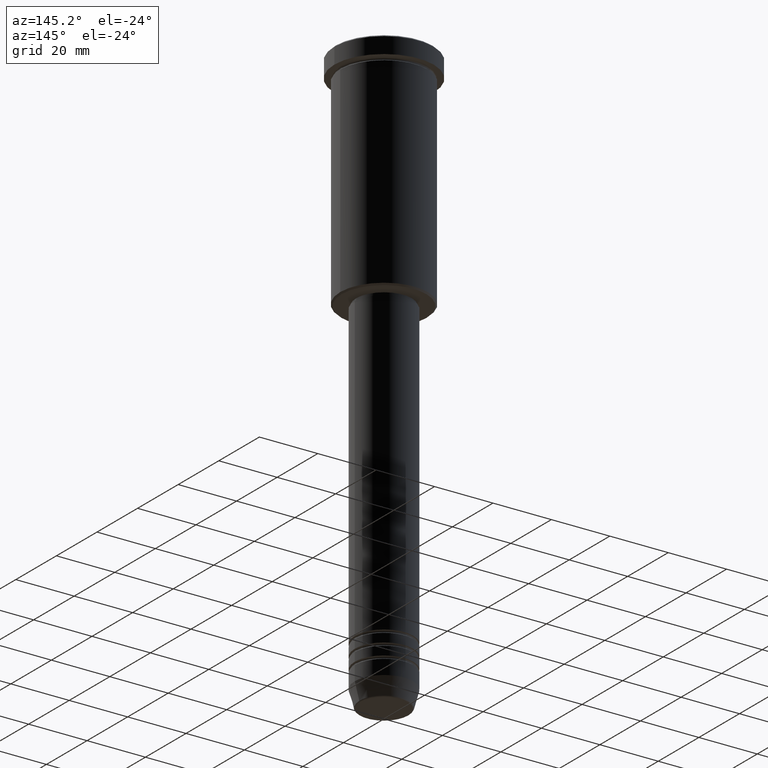
[diagram: clean part render]
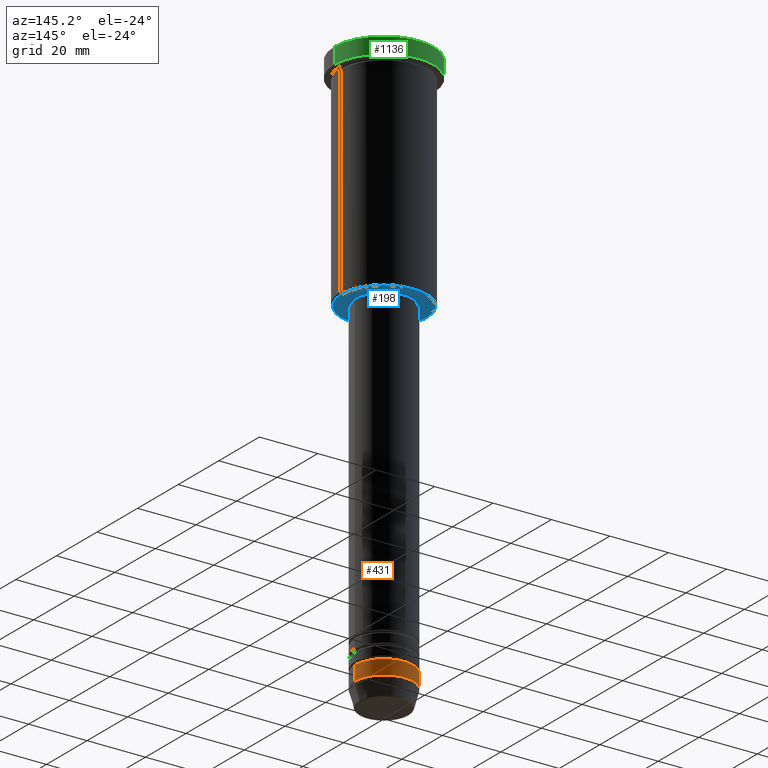
[diagram: same view with three faces highlighted in distinct colors, each labeled with its STEP entity id]
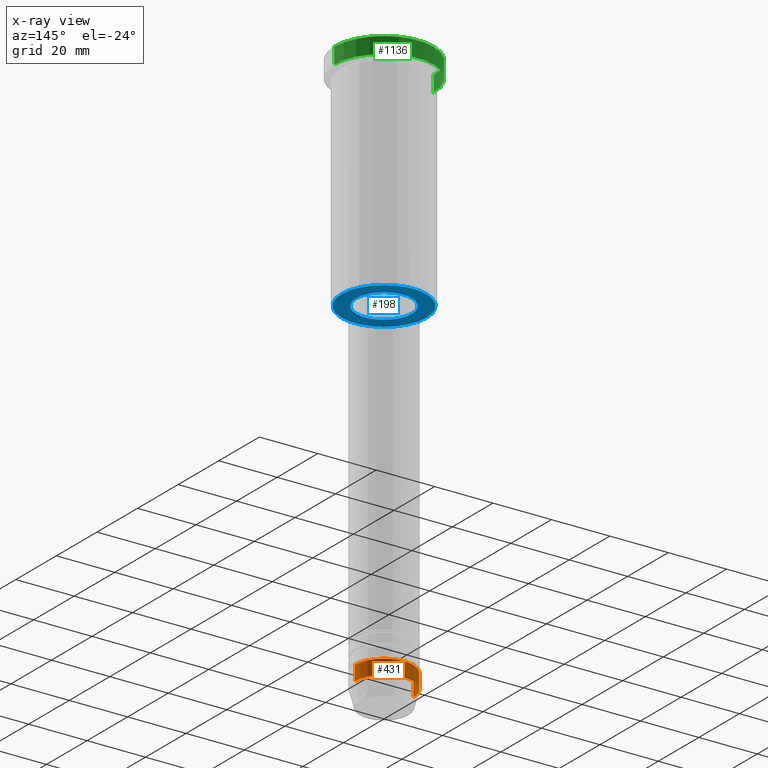
[diagram: x-ray of the same camera — body ghosted, the three highlighted faces saturated]
A machine part, auxiliary view with three faces highlighted in distinct colors.
The next image is the same camera in x-ray (body ghosted, the three faces saturated) — at least one of them is partly hidden behind the body in this view.
Their STEP definitions:

[orange] entity #431 — the highlighted cylindrical surface (edge-blend (fillet) strip) has radius 10 mm, axis along (-0, -0, 1).
#37 = DIRECTION ( 'NONE',  ( 1.000000000000000000, 0.000000000000000000, 0.000000000000000000 ) ) ;
#45 = DIRECTION ( 'NONE',  ( -0.000000000000000000, -0.000000000000000000, 1.000000000000000000 ) ) ;
#74 = CARTESIAN_POINT ( 'NONE',  ( -10.00000000000000000, 1.224646799147353256E-15, -189.0000000000000284 ) ) ;
#116 = VECTOR ( 'NONE', #1035, 1000.000000000000000 ) ;
#177 = VERTEX_POINT ( 'NONE', #1150 ) ;
#188 = VERTEX_POINT ( 'NONE', #583 ) ;
#210 = DIRECTION ( 'NONE',  ( -0.000000000000000000, -0.000000000000000000, 1.000000000000000000 ) ) ;
#231 = CARTESIAN_POINT ( 'NONE',  ( 10.00000000000000178, 0.000000000000000000, 0.000000000000000000 ) ) ;
#260 = ORIENTED_EDGE ( 'NONE', *, *, #335, .T. ) ;
#301 = DIRECTION ( 'NONE',  ( 1.000000000000000000, 0.000000000000000000, 0.000000000000000000 ) ) ;
#324 = CIRCLE ( 'NONE', #818, 10.00000000000000178 ) ;
#335 = EDGE_CURVE ( 'NONE', #177, #651, #324, .T. ) ;
#375 = EDGE_CURVE ( 'NONE', #177, #188, #409, .T. ) ;
#396 = CYLINDRICAL_SURFACE ( 'NONE', #659, 10.00000000000000178 ) ;
#405 = AXIS2_PLACEMENT_3D ( 'NONE', #575, #210, #301 ) ;
#409 = LINE ( 'NONE', #231, #861 ) ;
#412 = EDGE_LOOP ( 'NONE', ( #260, #1130, #586, #950 ) ) ;
#431 = ADVANCED_FACE ( 'NONE', ( #1040 ), #396, .T. ) ;
#466 = CARTESIAN_POINT ( 'NONE',  ( 0.000000000000000000, 0.000000000000000000, -194.0000000000000284 ) ) ;
#470 = EDGE_CURVE ( 'NONE', #188, #1179, #734, .T. ) ;
#575 = CARTESIAN_POINT ( 'NONE',  ( 0.000000000000000000, 0.000000000000000000, -189.0000000000000284 ) ) ;
#583 = CARTESIAN_POINT ( 'NONE',  ( 10.00000000000000000, 0.000000000000000000, -189.0000000000000284 ) ) ;
#586 = ORIENTED_EDGE ( 'NONE', *, *, #470, .F. ) ;
#651 = VERTEX_POINT ( 'NONE', #800 ) ;
#659 = AXIS2_PLACEMENT_3D ( 'NONE', #1055, #757, #37 ) ;
#666 = LINE ( 'NONE', #1025, #116 ) ;
#734 = CIRCLE ( 'NONE', #405, 10.00000000000000000 ) ;
#757 = DIRECTION ( 'NONE',  ( -0.000000000000000000, -0.000000000000000000, 1.000000000000000000 ) ) ;
#800 = CARTESIAN_POINT ( 'NONE',  ( -10.00000000000000178, 1.224646799147353454E-15, -194.0000000000000284 ) ) ;
#818 = AXIS2_PLACEMENT_3D ( 'NONE', #466, #842, #1122 ) ;
#842 = DIRECTION ( 'NONE',  ( -0.000000000000000000, -0.000000000000000000, 1.000000000000000000 ) ) ;
#861 = VECTOR ( 'NONE', #45, 1000.000000000000000 ) ;
#950 = ORIENTED_EDGE ( 'NONE', *, *, #375, .F. ) ;
#1010 = EDGE_CURVE ( 'NONE', #651, #1179, #666, .T. ) ;
#1025 = CARTESIAN_POINT ( 'NONE',  ( -10.00000000000000178, 1.224646799147353454E-15, 0.000000000000000000 ) ) ;
#1035 = DIRECTION ( 'NONE',  ( -0.000000000000000000, -0.000000000000000000, 1.000000000000000000 ) ) ;
#1040 = FACE_OUTER_BOUND ( 'NONE', #412, .T. ) ;
#1055 = CARTESIAN_POINT ( 'NONE',  ( 0.000000000000000000, 0.000000000000000000, 0.000000000000000000 ) ) ;
#1122 = DIRECTION ( 'NONE',  ( 1.000000000000000000, 0.000000000000000000, 0.000000000000000000 ) ) ;
#1130 = ORIENTED_EDGE ( 'NONE', *, *, #1010, .T. ) ;
#1150 = CARTESIAN_POINT ( 'NONE',  ( 10.00000000000000178, 0.000000000000000000, -194.0000000000000284 ) ) ;
#1179 = VERTEX_POINT ( 'NONE', #74 ) ;

[blue] entity #198 — the highlighted planar face has unit normal (0, 0, -1).
#14 = DIRECTION ( 'NONE',  ( -0.000000000000000000, -0.000000000000000000, 1.000000000000000000 ) ) ;
#43 = CIRCLE ( 'NONE', #726, 14.49999999999995559 ) ;
#46 = AXIS2_PLACEMENT_3D ( 'NONE', #233, #328, #432 ) ;
#147 = ORIENTED_EDGE ( 'NONE', *, *, #661, .T. ) ;
#198 = ADVANCED_FACE ( 'NONE', ( #423, #605 ), #866, .T. ) ;
#209 = VERTEX_POINT ( 'NONE', #871 ) ;
#217 = CARTESIAN_POINT ( 'NONE',  ( 0.000000000000000000, 15.00000000000000000, -76.00000000000001421 ) ) ;
#233 = CARTESIAN_POINT ( 'NONE',  ( 0.000000000000000000, 0.000000000000000000, -76.00000000000001421 ) ) ;
#247 = EDGE_CURVE ( 'NONE', #209, #825, #1178, .T. ) ;
#293 = CARTESIAN_POINT ( 'NONE',  ( 9.500000000000001776, 0.000000000000000000, -76.00000000000001421 ) ) ;
#308 = DIRECTION ( 'NONE',  ( 0.000000000000000000, 0.000000000000000000, -1.000000000000000000 ) ) ;
#328 = DIRECTION ( 'NONE',  ( -0.000000000000000000, -0.000000000000000000, 1.000000000000000000 ) ) ;
#340 = CARTESIAN_POINT ( 'NONE',  ( -9.500000000000001776, 1.163414459189985682E-15, -76.00000000000001421 ) ) ;
#358 = CARTESIAN_POINT ( 'NONE',  ( 0.000000000000000000, 0.000000000000000000, -76.00000000000001421 ) ) ;
#373 = DIRECTION ( 'NONE',  ( 1.000000000000000000, 0.000000000000000000, 0.000000000000000000 ) ) ;
#423 = FACE_OUTER_BOUND ( 'NONE', #1050, .T. ) ;
#432 = DIRECTION ( 'NONE',  ( 1.000000000000000000, 0.000000000000000000, 0.000000000000000000 ) ) ;
#437 = CARTESIAN_POINT ( 'NONE',  ( 0.000000000000000000, 0.000000000000000000, -76.00000000000001421 ) ) ;
#451 = ORIENTED_EDGE ( 'NONE', *, *, #845, .T. ) ;
#464 = VERTEX_POINT ( 'NONE', #293 ) ;
#519 = CIRCLE ( 'NONE', #1170, 9.500000000000001776 ) ;
#605 = FACE_BOUND ( 'NONE', #952, .T. ) ;
#648 = CARTESIAN_POINT ( 'NONE',  ( -14.49999999999995559, 1.806354028742343041E-15, -76.00000000000001421 ) ) ;
#661 = EDGE_CURVE ( 'NONE', #825, #209, #43, .T. ) ;
#708 = DIRECTION ( 'NONE',  ( -1.000000000000000000, 0.000000000000000000, 0.000000000000000000 ) ) ;
#726 = AXIS2_PLACEMENT_3D ( 'NONE', #358, #1167, #729 ) ;
#729 = DIRECTION ( 'NONE',  ( -1.000000000000000000, 0.000000000000000000, 0.000000000000000000 ) ) ;
#733 = VERTEX_POINT ( 'NONE', #340 ) ;
#767 = CIRCLE ( 'NONE', #46, 9.500000000000001776 ) ;
#825 = VERTEX_POINT ( 'NONE', #648 ) ;
#841 = CARTESIAN_POINT ( 'NONE',  ( 0.000000000000000000, 0.000000000000000000, -76.00000000000001421 ) ) ;
#845 = EDGE_CURVE ( 'NONE', #733, #464, #519, .T. ) ;
#866 = PLANE ( 'NONE',  #1044 ) ;
#871 = CARTESIAN_POINT ( 'NONE',  ( 14.49999999999995559, 0.000000000000000000, -76.00000000000001421 ) ) ;
#952 = EDGE_LOOP ( 'NONE', ( #1144, #451 ) ) ;
#958 = AXIS2_PLACEMENT_3D ( 'NONE', #437, #995, #708 ) ;
#966 = DIRECTION ( 'NONE',  ( -1.000000000000000000, 0.000000000000000000, -0.000000000000000000 ) ) ;
#988 = ORIENTED_EDGE ( 'NONE', *, *, #247, .T. ) ;
#995 = DIRECTION ( 'NONE',  ( 0.000000000000000000, 0.000000000000000000, -1.000000000000000000 ) ) ;
#1044 = AXIS2_PLACEMENT_3D ( 'NONE', #217, #308, #966 ) ;
#1050 = EDGE_LOOP ( 'NONE', ( #988, #147 ) ) ;
#1096 = EDGE_CURVE ( 'NONE', #464, #733, #767, .T. ) ;
#1144 = ORIENTED_EDGE ( 'NONE', *, *, #1096, .T. ) ;
#1167 = DIRECTION ( 'NONE',  ( 0.000000000000000000, 0.000000000000000000, -1.000000000000000000 ) ) ;
#1170 = AXIS2_PLACEMENT_3D ( 'NONE', #841, #14, #373 ) ;
#1178 = CIRCLE ( 'NONE', #958, 14.49999999999995559 ) ;

[green] entity #1136 — the highlighted cylindrical surface (partial cylindrical patch) has radius 17 mm, axis along (-0, -0, 1).
#4 = AXIS2_PLACEMENT_3D ( 'NONE', #778, #259, #1088 ) ;
#135 = VERTEX_POINT ( 'NONE', #888 ) ;
#148 = DIRECTION ( 'NONE',  ( -0.000000000000000000, -0.000000000000000000, 1.000000000000000000 ) ) ;
#162 = DIRECTION ( 'NONE',  ( -0.000000000000000000, -0.000000000000000000, 1.000000000000000000 ) ) ;
#199 = DIRECTION ( 'NONE',  ( -0.000000000000000000, -0.000000000000000000, 1.000000000000000000 ) ) ;
#229 = EDGE_LOOP ( 'NONE', ( #579, #274, #1039, #831 ) ) ;
#237 = DIRECTION ( 'NONE',  ( 1.000000000000000000, 0.000000000000000000, 0.000000000000000000 ) ) ;
#239 = EDGE_CURVE ( 'NONE', #937, #1072, #710, .T. ) ;
#245 = CARTESIAN_POINT ( 'NONE',  ( 0.000000000000000000, 0.000000000000000000, 0.000000000000000000 ) ) ;
#259 = DIRECTION ( 'NONE',  ( -0.000000000000000000, -0.000000000000000000, 1.000000000000000000 ) ) ;
#274 = ORIENTED_EDGE ( 'NONE', *, *, #983, .T. ) ;
#283 = EDGE_CURVE ( 'NONE', #532, #1072, #715, .T. ) ;
#303 = CARTESIAN_POINT ( 'NONE',  ( -17.00000000000000000, 2.081899558550500280E-15, 0.000000000000000000 ) ) ;
#347 = VECTOR ( 'NONE', #162, 1000.000000000000000 ) ;
#388 = LINE ( 'NONE', #303, #833 ) ;
#525 = FACE_OUTER_BOUND ( 'NONE', #229, .T. ) ;
#530 = CARTESIAN_POINT ( 'NONE',  ( 17.00000000000000000, 0.000000000000000000, 0.000000000000000000 ) ) ;
#532 = VERTEX_POINT ( 'NONE', #635 ) ;
#579 = ORIENTED_EDGE ( 'NONE', *, *, #905, .T. ) ;
#635 = CARTESIAN_POINT ( 'NONE',  ( 17.00000000000000000, 0.000000000000000000, -5.999999999999994671 ) ) ;
#710 = CIRCLE ( 'NONE', #1063, 17.00000000000000000 ) ;
#715 = LINE ( 'NONE', #530, #347 ) ;
#778 = CARTESIAN_POINT ( 'NONE',  ( 0.000000000000000000, 0.000000000000000000, -5.999999999999994671 ) ) ;
#802 = DIRECTION ( 'NONE',  ( 1.000000000000000000, 0.000000000000000000, 0.000000000000000000 ) ) ;
#831 = ORIENTED_EDGE ( 'NONE', *, *, #283, .F. ) ;
#833 = VECTOR ( 'NONE', #199, 1000.000000000000000 ) ;
#857 = CARTESIAN_POINT ( 'NONE',  ( -17.00000000000000000, 2.081899558550500280E-15, -0.5000000000000213163 ) ) ;
#888 = CARTESIAN_POINT ( 'NONE',  ( -17.00000000000000000, 2.081899558550500280E-15, -5.999999999999994671 ) ) ;
#897 = CARTESIAN_POINT ( 'NONE',  ( 0.000000000000000000, 0.000000000000000000, -0.5000000000000213163 ) ) ;
#905 = EDGE_CURVE ( 'NONE', #532, #135, #1041, .T. ) ;
#937 = VERTEX_POINT ( 'NONE', #857 ) ;
#983 = EDGE_CURVE ( 'NONE', #135, #937, #388, .T. ) ;
#989 = DIRECTION ( 'NONE',  ( 0.000000000000000000, 0.000000000000000000, -1.000000000000000000 ) ) ;
#1019 = AXIS2_PLACEMENT_3D ( 'NONE', #245, #148, #802 ) ;
#1039 = ORIENTED_EDGE ( 'NONE', *, *, #239, .T. ) ;
#1041 = CIRCLE ( 'NONE', #4, 17.00000000000000000 ) ;
#1059 = CYLINDRICAL_SURFACE ( 'NONE', #1019, 17.00000000000000000 ) ;
#1063 = AXIS2_PLACEMENT_3D ( 'NONE', #897, #989, #237 ) ;
#1072 = VERTEX_POINT ( 'NONE', #1141 ) ;
#1088 = DIRECTION ( 'NONE',  ( 1.000000000000000000, 0.000000000000000000, 0.000000000000000000 ) ) ;
#1136 = ADVANCED_FACE ( 'NONE', ( #525 ), #1059, .T. ) ;
#1141 = CARTESIAN_POINT ( 'NONE',  ( 17.00000000000000000, 0.000000000000000000, -0.5000000000000213163 ) ) ;